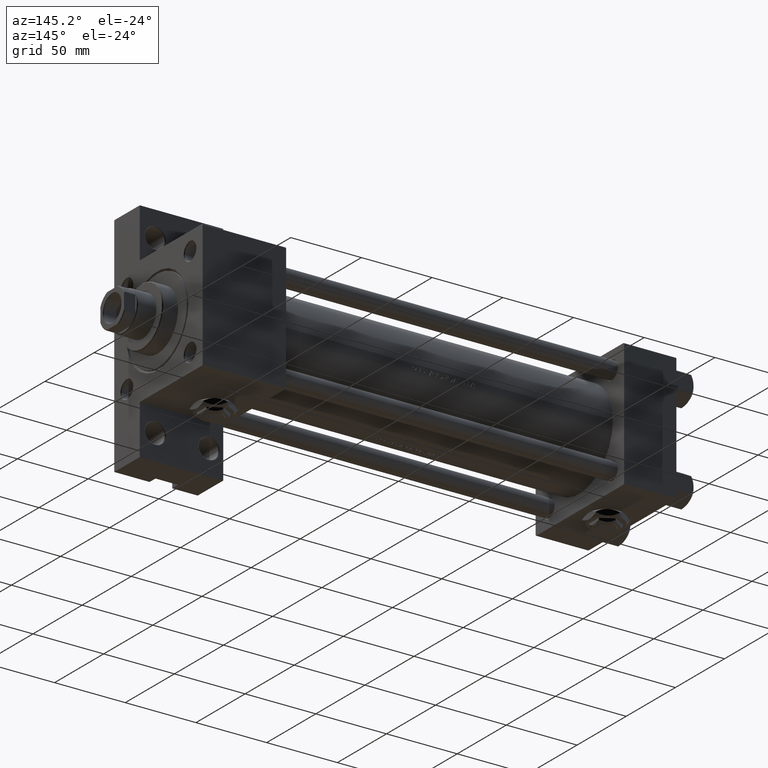
[diagram: clean part render]
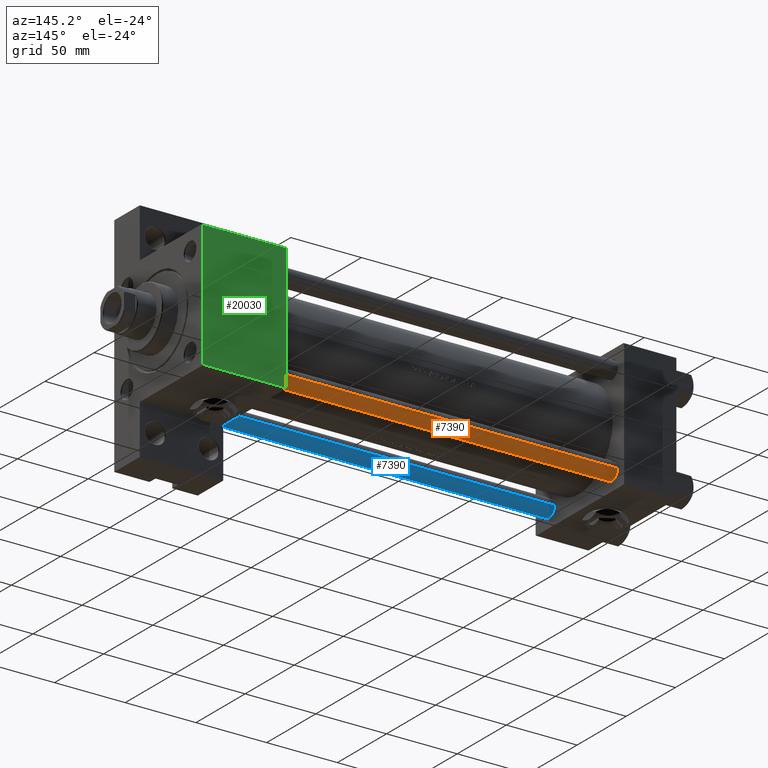
[diagram: same view with three faces highlighted in distinct colors, each labeled with its STEP entity id]
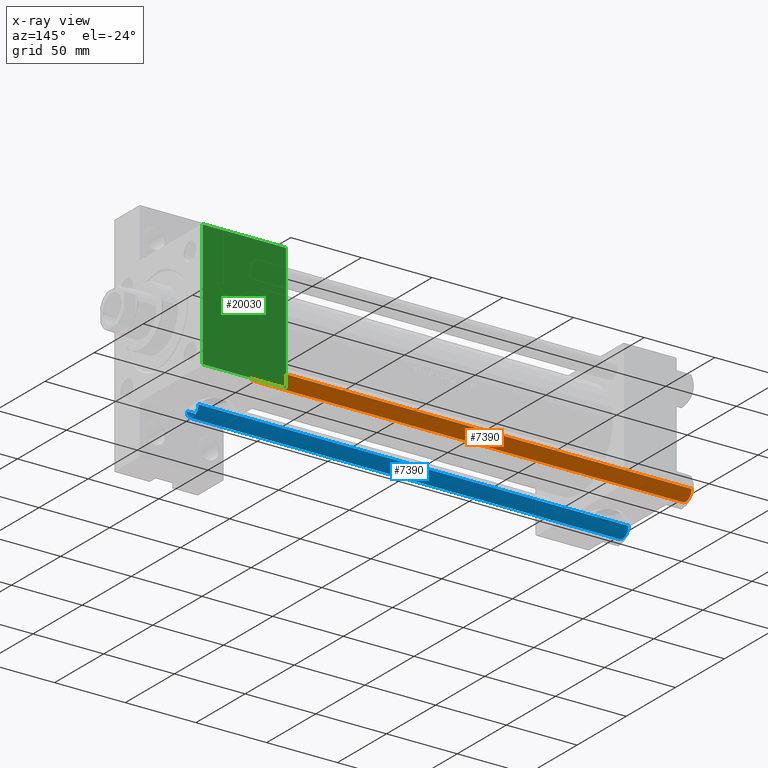
[diagram: x-ray of the same camera — body ghosted, the three highlighted faces saturated]
A machine part, auxiliary view with three faces highlighted in distinct colors.
The next image is the same camera in x-ray (body ghosted, the three faces saturated) — at least one of them is partly hidden behind the body in this view.
Their STEP definitions:

[orange] entity #7390 — the highlighted cylindrical surface (edge-blend (fillet) strip) has radius 6 mm, axis along (-1, -0, 0).
#404 = CARTESIAN_POINT ( 'NONE',  ( 0.000000000000000000, 0.000000000000000000, 305.0000000000000000 ) ) ;
#1435 = AXIS2_PLACEMENT_3D ( 'NONE', #5644, #12453, #27761 ) ;
#2309 = VERTEX_POINT ( 'NONE', #13663 ) ;
#3917 = CYLINDRICAL_SURFACE ( 'NONE', #43767, 6.000000000000000888 ) ;
#5644 = CARTESIAN_POINT ( 'NONE',  ( 0.000000000000000000, 0.000000000000000000, 304.5000000000000000 ) ) ;
#7390 = ADVANCED_FACE ( 'NONE', ( #34582 ), #3917, .T. ) ;
#9574 = EDGE_CURVE ( 'NONE', #2309, #14546, #21798, .T. ) ;
#10747 = CARTESIAN_POINT ( 'NONE',  ( -6.000000000000000888, 0.000000000000000000, 305.0000000000000000 ) ) ;
#12453 = DIRECTION ( 'NONE',  ( 0.000000000000000000, 0.000000000000000000, -1.000000000000000000 ) ) ;
#13663 = CARTESIAN_POINT ( 'NONE',  ( -6.000000000000000888, 0.000000000000000000, 304.5000000000000000 ) ) ;
#13746 = ORIENTED_EDGE ( 'NONE', *, *, #9574, .T. ) ;
#14546 = VERTEX_POINT ( 'NONE', #44766 ) ;
#14924 = EDGE_CURVE ( 'NONE', #36758, #21389, #38412, .T. ) ;
#16815 = VECTOR ( 'NONE', #37164, 1000.000000000000000 ) ;
#17134 = CARTESIAN_POINT ( 'NONE',  ( 6.000000000000000888, 7.347880794884120722E-16, 0.5000000000000004441 ) ) ;
#17480 = CIRCLE ( 'NONE', #1435, 6.000000000000000888 ) ;
#18732 = EDGE_CURVE ( 'NONE', #14546, #21389, #42932, .T. ) ;
#20832 = DIRECTION ( 'NONE',  ( -0.000000000000000000, -0.000000000000000000, 1.000000000000000000 ) ) ;
#21250 = AXIS2_PLACEMENT_3D ( 'NONE', #48002, #20832, #24603 ) ;
#21389 = VERTEX_POINT ( 'NONE', #17134 ) ;
#21798 = LINE ( 'NONE', #10747, #16815 ) ;
#24603 = DIRECTION ( 'NONE',  ( 1.000000000000000000, 0.000000000000000000, 0.000000000000000000 ) ) ;
#24979 = ORIENTED_EDGE ( 'NONE', *, *, #28686, .T. ) ;
#27074 = ORIENTED_EDGE ( 'NONE', *, *, #14924, .F. ) ;
#27520 = DIRECTION ( 'NONE',  ( -0.000000000000000000, -0.000000000000000000, -1.000000000000000000 ) ) ;
#27761 = DIRECTION ( 'NONE',  ( 1.000000000000000000, 0.000000000000000000, 0.000000000000000000 ) ) ;
#28686 = EDGE_CURVE ( 'NONE', #36758, #2309, #17480, .T. ) ;
#29144 = VECTOR ( 'NONE', #34862, 1000.000000000000000 ) ;
#34582 = FACE_OUTER_BOUND ( 'NONE', #37437, .T. ) ;
#34862 = DIRECTION ( 'NONE',  ( -0.000000000000000000, -0.000000000000000000, -1.000000000000000000 ) ) ;
#36758 = VERTEX_POINT ( 'NONE', #47916 ) ;
#37164 = DIRECTION ( 'NONE',  ( -0.000000000000000000, -0.000000000000000000, -1.000000000000000000 ) ) ;
#37437 = EDGE_LOOP ( 'NONE', ( #27074, #24979, #13746, #41473 ) ) ;
#38159 = CARTESIAN_POINT ( 'NONE',  ( 6.000000000000000888, 7.347880794884120722E-16, 305.0000000000000000 ) ) ;
#38412 = LINE ( 'NONE', #38159, #29144 ) ;
#41473 = ORIENTED_EDGE ( 'NONE', *, *, #18732, .T. ) ;
#42881 = DIRECTION ( 'NONE',  ( -1.000000000000000000, 0.000000000000000000, 0.000000000000000000 ) ) ;
#42932 = CIRCLE ( 'NONE', #21250, 6.000000000000000888 ) ;
#43767 = AXIS2_PLACEMENT_3D ( 'NONE', #404, #27520, #42881 ) ;
#44766 = CARTESIAN_POINT ( 'NONE',  ( -6.000000000000000888, 0.000000000000000000, 0.5000000000000004441 ) ) ;
#47916 = CARTESIAN_POINT ( 'NONE',  ( 6.000000000000000888, 7.347880794884120722E-16, 304.5000000000000000 ) ) ;
#48002 = CARTESIAN_POINT ( 'NONE',  ( 0.000000000000000000, 0.000000000000000000, 0.5000000000000004441 ) ) ;

[blue] entity #7390 — the highlighted cylindrical surface (edge-blend (fillet) strip) has radius 6 mm, axis along (1, 0, 0).
#404 = CARTESIAN_POINT ( 'NONE',  ( 0.000000000000000000, 0.000000000000000000, 305.0000000000000000 ) ) ;
#1435 = AXIS2_PLACEMENT_3D ( 'NONE', #5644, #12453, #27761 ) ;
#2309 = VERTEX_POINT ( 'NONE', #13663 ) ;
#3917 = CYLINDRICAL_SURFACE ( 'NONE', #43767, 6.000000000000000888 ) ;
#5644 = CARTESIAN_POINT ( 'NONE',  ( 0.000000000000000000, 0.000000000000000000, 304.5000000000000000 ) ) ;
#7390 = ADVANCED_FACE ( 'NONE', ( #34582 ), #3917, .T. ) ;
#9574 = EDGE_CURVE ( 'NONE', #2309, #14546, #21798, .T. ) ;
#10747 = CARTESIAN_POINT ( 'NONE',  ( -6.000000000000000888, 0.000000000000000000, 305.0000000000000000 ) ) ;
#12453 = DIRECTION ( 'NONE',  ( 0.000000000000000000, 0.000000000000000000, -1.000000000000000000 ) ) ;
#13663 = CARTESIAN_POINT ( 'NONE',  ( -6.000000000000000888, 0.000000000000000000, 304.5000000000000000 ) ) ;
#13746 = ORIENTED_EDGE ( 'NONE', *, *, #9574, .T. ) ;
#14546 = VERTEX_POINT ( 'NONE', #44766 ) ;
#14924 = EDGE_CURVE ( 'NONE', #36758, #21389, #38412, .T. ) ;
#16815 = VECTOR ( 'NONE', #37164, 1000.000000000000000 ) ;
#17134 = CARTESIAN_POINT ( 'NONE',  ( 6.000000000000000888, 7.347880794884120722E-16, 0.5000000000000004441 ) ) ;
#17480 = CIRCLE ( 'NONE', #1435, 6.000000000000000888 ) ;
#18732 = EDGE_CURVE ( 'NONE', #14546, #21389, #42932, .T. ) ;
#20832 = DIRECTION ( 'NONE',  ( -0.000000000000000000, -0.000000000000000000, 1.000000000000000000 ) ) ;
#21250 = AXIS2_PLACEMENT_3D ( 'NONE', #48002, #20832, #24603 ) ;
#21389 = VERTEX_POINT ( 'NONE', #17134 ) ;
#21798 = LINE ( 'NONE', #10747, #16815 ) ;
#24603 = DIRECTION ( 'NONE',  ( 1.000000000000000000, 0.000000000000000000, 0.000000000000000000 ) ) ;
#24979 = ORIENTED_EDGE ( 'NONE', *, *, #28686, .T. ) ;
#27074 = ORIENTED_EDGE ( 'NONE', *, *, #14924, .F. ) ;
#27520 = DIRECTION ( 'NONE',  ( -0.000000000000000000, -0.000000000000000000, -1.000000000000000000 ) ) ;
#27761 = DIRECTION ( 'NONE',  ( 1.000000000000000000, 0.000000000000000000, 0.000000000000000000 ) ) ;
#28686 = EDGE_CURVE ( 'NONE', #36758, #2309, #17480, .T. ) ;
#29144 = VECTOR ( 'NONE', #34862, 1000.000000000000000 ) ;
#34582 = FACE_OUTER_BOUND ( 'NONE', #37437, .T. ) ;
#34862 = DIRECTION ( 'NONE',  ( -0.000000000000000000, -0.000000000000000000, -1.000000000000000000 ) ) ;
#36758 = VERTEX_POINT ( 'NONE', #47916 ) ;
#37164 = DIRECTION ( 'NONE',  ( -0.000000000000000000, -0.000000000000000000, -1.000000000000000000 ) ) ;
#37437 = EDGE_LOOP ( 'NONE', ( #27074, #24979, #13746, #41473 ) ) ;
#38159 = CARTESIAN_POINT ( 'NONE',  ( 6.000000000000000888, 7.347880794884120722E-16, 305.0000000000000000 ) ) ;
#38412 = LINE ( 'NONE', #38159, #29144 ) ;
#41473 = ORIENTED_EDGE ( 'NONE', *, *, #18732, .T. ) ;
#42881 = DIRECTION ( 'NONE',  ( -1.000000000000000000, 0.000000000000000000, 0.000000000000000000 ) ) ;
#42932 = CIRCLE ( 'NONE', #21250, 6.000000000000000888 ) ;
#43767 = AXIS2_PLACEMENT_3D ( 'NONE', #404, #27520, #42881 ) ;
#44766 = CARTESIAN_POINT ( 'NONE',  ( -6.000000000000000888, 0.000000000000000000, 0.5000000000000004441 ) ) ;
#47916 = CARTESIAN_POINT ( 'NONE',  ( 6.000000000000000888, 7.347880794884120722E-16, 304.5000000000000000 ) ) ;
#48002 = CARTESIAN_POINT ( 'NONE',  ( 0.000000000000000000, 0.000000000000000000, 0.5000000000000004441 ) ) ;

[green] entity #20030 — the highlighted planar face has unit normal (0, -1, -0).
#1954 = DIRECTION ( 'NONE',  ( 1.000000000000000000, 0.000000000000000000, 0.000000000000000000 ) ) ;
#2935 = DIRECTION ( 'NONE',  ( 0.000000000000000000, 1.000000000000000000, 1.541976423090495387E-16 ) ) ;
#3963 = VERTEX_POINT ( 'NONE', #37691 ) ;
#5678 = DIRECTION ( 'NONE',  ( -1.000000000000000000, 0.000000000000000000, 0.000000000000000000 ) ) ;
#6034 = CARTESIAN_POINT ( 'NONE',  ( 275.9999999999999432, -44.49999999999997158, 44.99999999999998579 ) ) ;
#6882 = ORIENTED_EDGE ( 'NONE', *, *, #46766, .T. ) ;
#8108 = EDGE_LOOP ( 'NONE', ( #11351, #17199, #12159, #6882 ) ) ;
#8186 = CARTESIAN_POINT ( 'NONE',  ( 334.9999999999999432, -44.49999999999997158, 44.99999999999998579 ) ) ;
#10735 = CARTESIAN_POINT ( 'NONE',  ( 334.9999999999999432, 45.00000000000001421, 45.00000000000000000 ) ) ;
#11351 = ORIENTED_EDGE ( 'NONE', *, *, #14315, .F. ) ;
#12159 = ORIENTED_EDGE ( 'NONE', *, *, #25080, .T. ) ;
#13804 = VERTEX_POINT ( 'NONE', #22231 ) ;
#14315 = EDGE_CURVE ( 'NONE', #3963, #43235, #28156, .T. ) ;
#15287 = DIRECTION ( 'NONE',  ( 0.000000000000000000, -1.000000000000000000, -1.541976423090495140E-16 ) ) ;
#17199 = ORIENTED_EDGE ( 'NONE', *, *, #37720, .T. ) ;
#18198 = VECTOR ( 'NONE', #15287, 1000.000000000000000 ) ;
#18880 = AXIS2_PLACEMENT_3D ( 'NONE', #10735, #48712, #2935 ) ;
#20030 = ADVANCED_FACE ( 'NONE', ( #37897 ), #30082, .F. ) ;
#22231 = CARTESIAN_POINT ( 'NONE',  ( 275.9999999999999432, 44.50000000000001421, 45.00000000000000000 ) ) ;
#24382 = CARTESIAN_POINT ( 'NONE',  ( 334.9999999999999432, 45.00000000000001421, 45.00000000000000000 ) ) ;
#25080 = EDGE_CURVE ( 'NONE', #13804, #44184, #34374, .T. ) ;
#25824 = CARTESIAN_POINT ( 'NONE',  ( 334.9999999999999432, -44.50000000000000000, 44.99999999999998579 ) ) ;
#28156 = LINE ( 'NONE', #24382, #46821 ) ;
#28951 = VECTOR ( 'NONE', #1954, 1000.000000000000000 ) ;
#30082 = PLANE ( 'NONE',  #18880 ) ;
#33636 = VECTOR ( 'NONE', #5678, 1000.000000000000000 ) ;
#34374 = LINE ( 'NONE', #49736, #18198 ) ;
#36100 = CARTESIAN_POINT ( 'NONE',  ( 275.9999999999999432, 44.50000000000001421, 45.00000000000000000 ) ) ;
#36393 = LINE ( 'NONE', #25824, #28951 ) ;
#36465 = DIRECTION ( 'NONE',  ( 0.000000000000000000, -1.000000000000000000, -1.541976423090495140E-16 ) ) ;
#37691 = CARTESIAN_POINT ( 'NONE',  ( 334.9999999999999432, 44.50000000000001421, 45.00000000000000000 ) ) ;
#37720 = EDGE_CURVE ( 'NONE', #3963, #13804, #40125, .T. ) ;
#37897 = FACE_OUTER_BOUND ( 'NONE', #8108, .T. ) ;
#40125 = LINE ( 'NONE', #36100, #33636 ) ;
#43235 = VERTEX_POINT ( 'NONE', #8186 ) ;
#44184 = VERTEX_POINT ( 'NONE', #6034 ) ;
#46766 = EDGE_CURVE ( 'NONE', #44184, #43235, #36393, .T. ) ;
#46821 = VECTOR ( 'NONE', #36465, 1000.000000000000000 ) ;
#48712 = DIRECTION ( 'NONE',  ( 0.000000000000000000, 1.541976423090495387E-16, -1.000000000000000000 ) ) ;
#49736 = CARTESIAN_POINT ( 'NONE',  ( 275.9999999999999432, 45.00000000000001421, 45.00000000000000000 ) ) ;